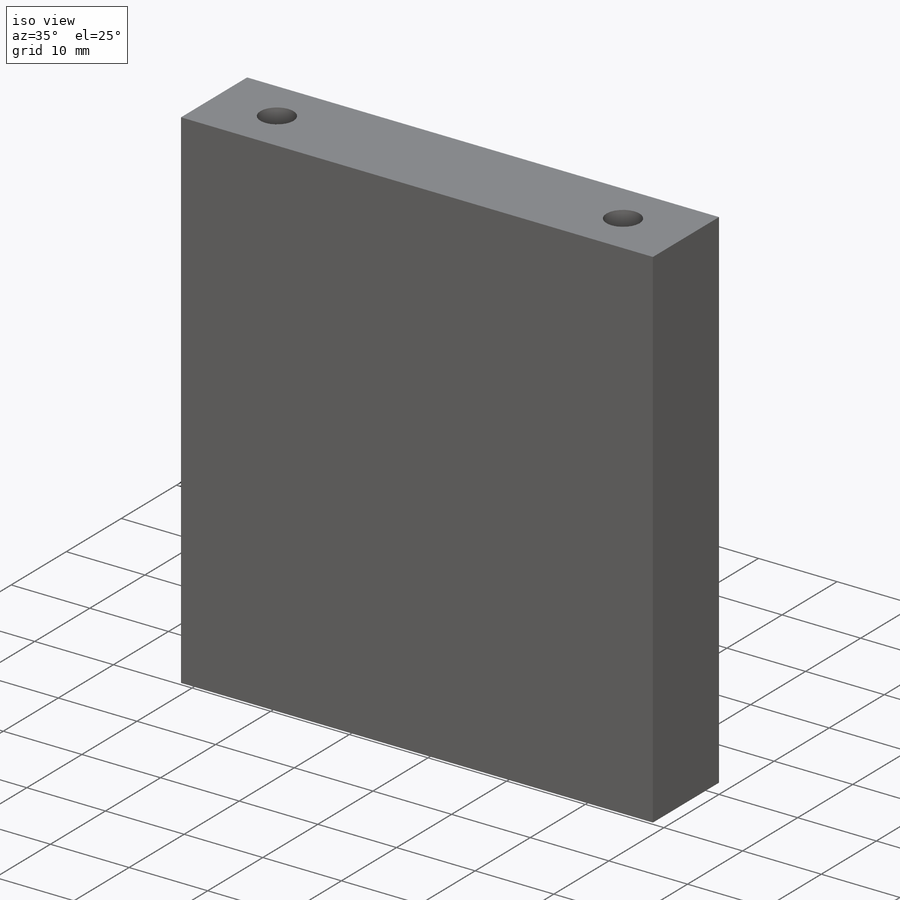
[diagram: iso view]
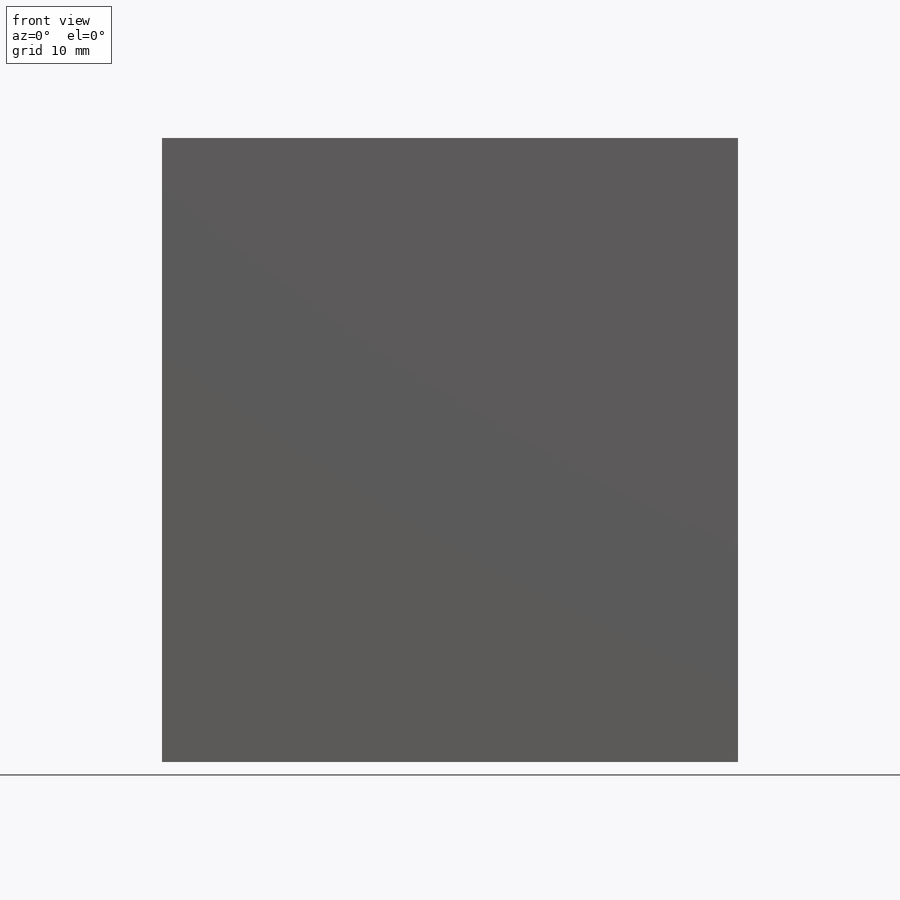
[diagram: front view]
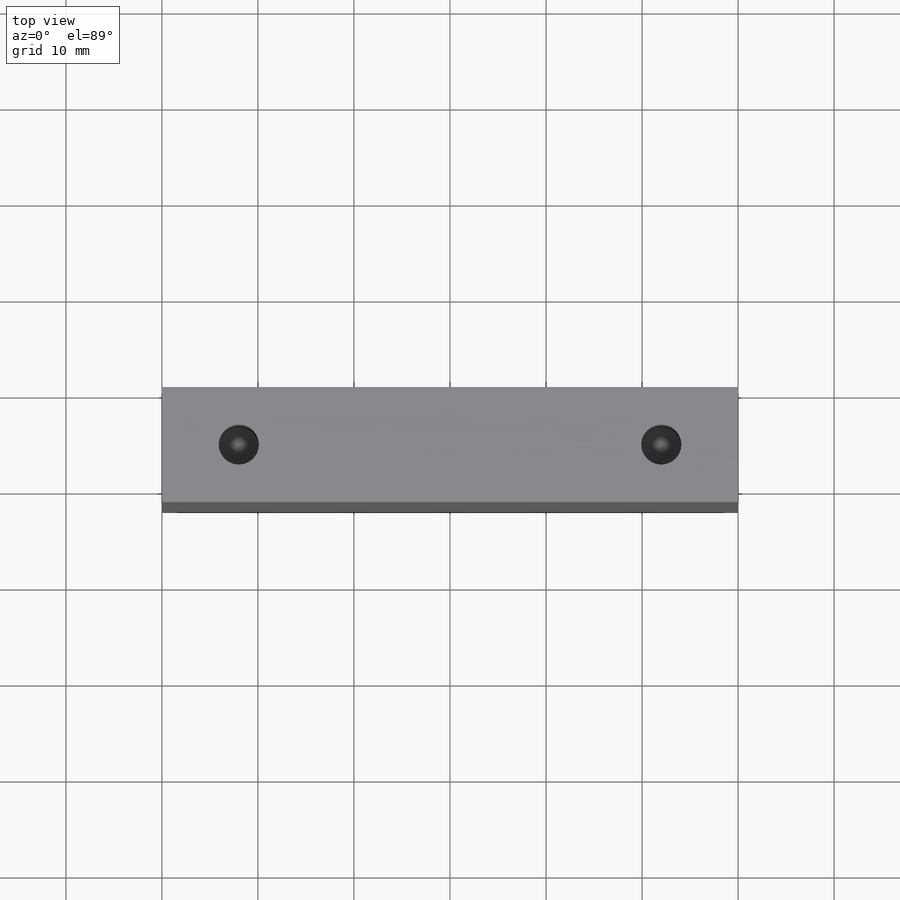
[diagram: top view]
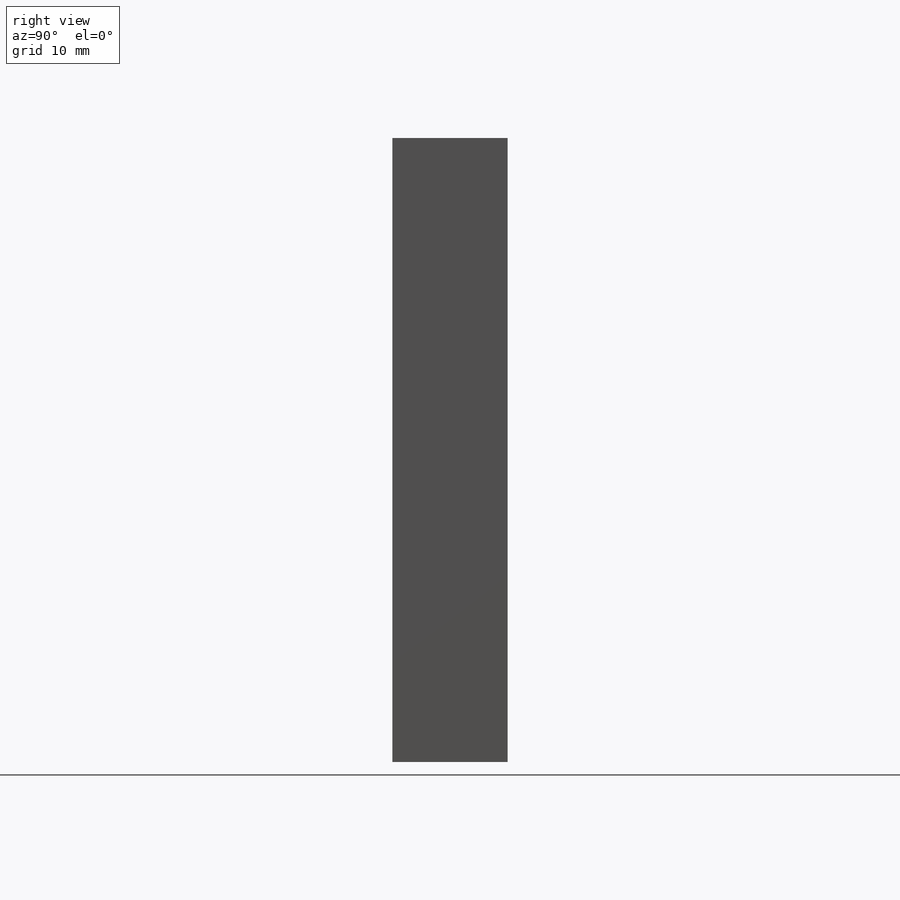
[diagram: right view]
SOLIDWORKS PART (.sldprt)
format: sldprt  version: not decoded by parser v0  size: 254,976 bytes
history: native  units: mm
features: sketch x9, hole x4, thread x4, plane x3, material x1, extrude x1 (+13 scaffold rows collapsed)
feature tree (35):
  scaffold x13  (default folders/planes/origin — collapsed)
  material  "3.1325 (EN-AW 2017A)"
  plane  "Plan de face"
  plane  "Plan de dessus"
  plane  "Plan de droite"
  sketch  "Esquisse1"  dims[D1=60.0mm D2=65.0mm]
  extrude  "Boss.-Extru.1"  Depth=12mm
  hole  "Trou taraudé M57"  Diameter=4.2mm Depth=14mm
  sketch  "Esquisse3"  dims[D1=6.0mm D2=8.0mm]
  sketch  "Esquisse2"  dims[hole-wizard template sketch: 50 standard entries collapsed; hole parameters above]
  thread  "Filetage de perçage1"  Diameter=10mm  [1 undecoded]
  hole  "Trou taraudé M58"  Diameter=4.2mm Depth=14mm
  sketch  "Esquisse5"  dims[D1=6.0mm D2=8.0mm]
  sketch  "Esquisse4"  dims[hole-wizard template sketch: 50 standard entries collapsed; hole parameters above]
  thread  "Filetage de perçage2"  Diameter=10mm  [1 undecoded]
  hole  "Trou taraudé M56"  Diameter=4.2mm Depth=14mm
  sketch  "Esquisse10"  dims[D1=8.0mm D2=6.0mm]
  sketch  "Esquisse9"  dims[hole-wizard template sketch: 50 standard entries collapsed; hole parameters above]
  thread  "Filetage de perçage3"  Diameter=10mm  [1 undecoded]
  hole  "Trou taraudé M55"  Diameter=4.2mm Depth=14mm
  sketch  "Esquisse12"  dims[D1=6.0mm D2=8.0mm]
  sketch  "Esquisse11"  dims[hole-wizard template sketch: 50 standard entries collapsed; hole parameters above]
  thread  "Filetage de perçage4"  Diameter=10mm  [1 undecoded]
decode coverage: 18 of 18 modeling features carry decoded parameters
note: ~ marks probable driven/reference dimensions
note: 4 parameter values undecoded
summary: Diameter pulled from absorbed wizard sketch
note: suppression state not decoded; provenance and decode notes live in map.json
